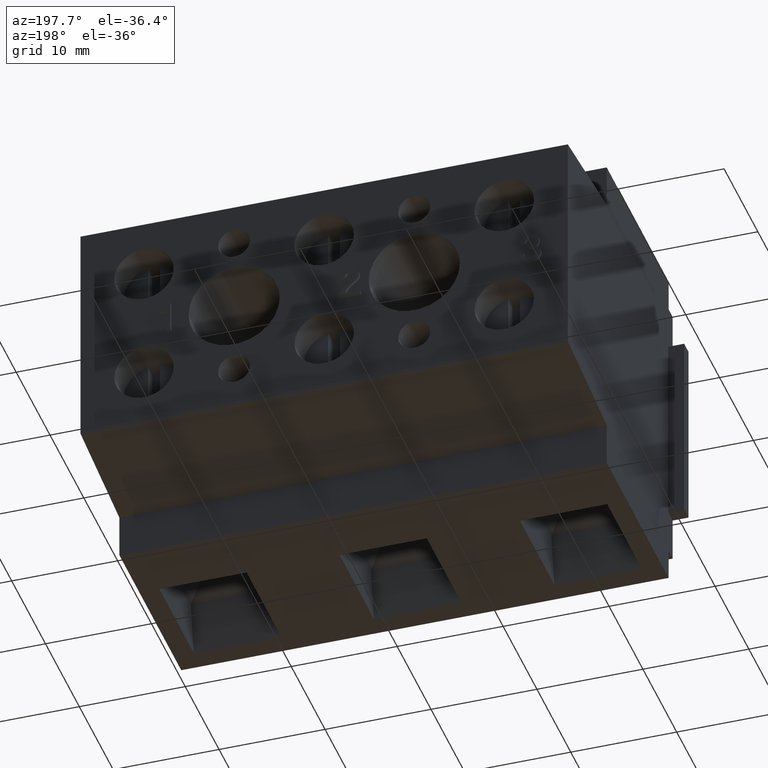
[diagram: clean part render]
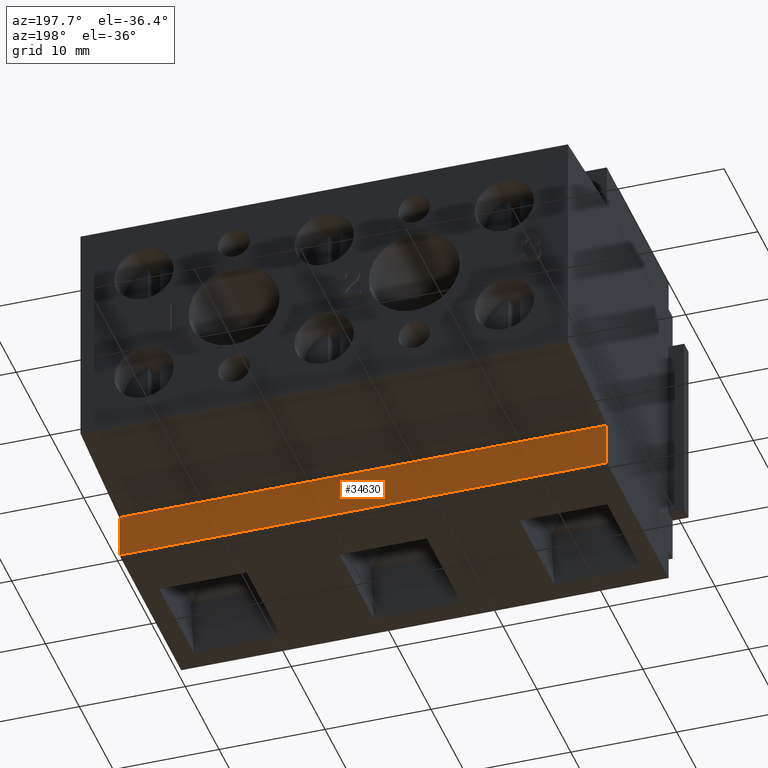
[diagram: same view with one face highlighted and labeled with its STEP entity id]
A machine part, auxiliary view. The second image highlights one B-rep face of the part: STEP entity #34630.
In plain terms, the highlighted planar face has unit normal (0, -1, 0).
Its self-contained STEP definition (entity closure, byte-faithful):
#14530=CARTESIAN_POINT('',(-209.409574468087,127.225531914894,46.));
#14540=VERTEX_POINT('',#14530);
#14570=CARTESIAN_POINT('',(-209.409574468087,114.925531914894,46.));
#14580=DIRECTION('',(0.,1.,0.));
#14590=VECTOR('',#14580,1.);
#14600=LINE('',#14570,#14590);
#14610=CARTESIAN_POINT('',(-209.409574468087,131.425531914894,46.));
#14620=VERTEX_POINT('',#14610);
#14630=EDGE_CURVE('',#14540,#14620,#14600,.T.);
#34180=CARTESIAN_POINT('',(-209.409574468087,127.225531914894,
3.5527136788005E-15));
#34190=VERTEX_POINT('',#34180);
#34220=CARTESIAN_POINT('',(-209.409574468087,127.225531914894,29.));
#34230=DIRECTION('',(0.,0.,-1.));
#34240=VECTOR('',#34230,1.);
#34250=LINE('',#34220,#34240);
#34260=EDGE_CURVE('',#14540,#34190,#34250,.T.);
#34400=CARTESIAN_POINT('',(-209.409574468087,127.225531914894,29.));
#34410=DIRECTION('',(1.,0.,0.));
#34420=DIRECTION('',(0.,-1.,0.));
#34430=AXIS2_PLACEMENT_3D('',#34400,#34410,#34420);
#34440=PLANE('',#34430);
#34450=CARTESIAN_POINT('',(-209.409574468087,114.925531914894,
3.5527136788005E-15));
#34460=DIRECTION('',(0.,-1.,0.));
#34470=VECTOR('',#34460,1.);
#34480=LINE('',#34450,#34470);
#34490=CARTESIAN_POINT('',(-209.409574468087,131.425531914894,
3.5527136788005E-15));
#34500=VERTEX_POINT('',#34490);
#34510=EDGE_CURVE('',#34500,#34190,#34480,.T.);
#34520=ORIENTED_EDGE('',*,*,#34510,.T.);
#34530=CARTESIAN_POINT('',(-209.409574468087,131.425531914894,29.));
#34540=DIRECTION('',(0.,0.,-1.));
#34550=VECTOR('',#34540,1.);
#34560=LINE('',#34530,#34550);
#34570=EDGE_CURVE('',#14620,#34500,#34560,.T.);
#34580=ORIENTED_EDGE('',*,*,#34570,.T.);
#34590=ORIENTED_EDGE('',*,*,#14630,.T.);
#34600=ORIENTED_EDGE('',*,*,#34260,.F.);
#34610=EDGE_LOOP('',(#34600,#34590,#34580,#34520));
#34620=FACE_OUTER_BOUND('',#34610,.T.);
#34630=ADVANCED_FACE('',(#34620),#34440,.F.);